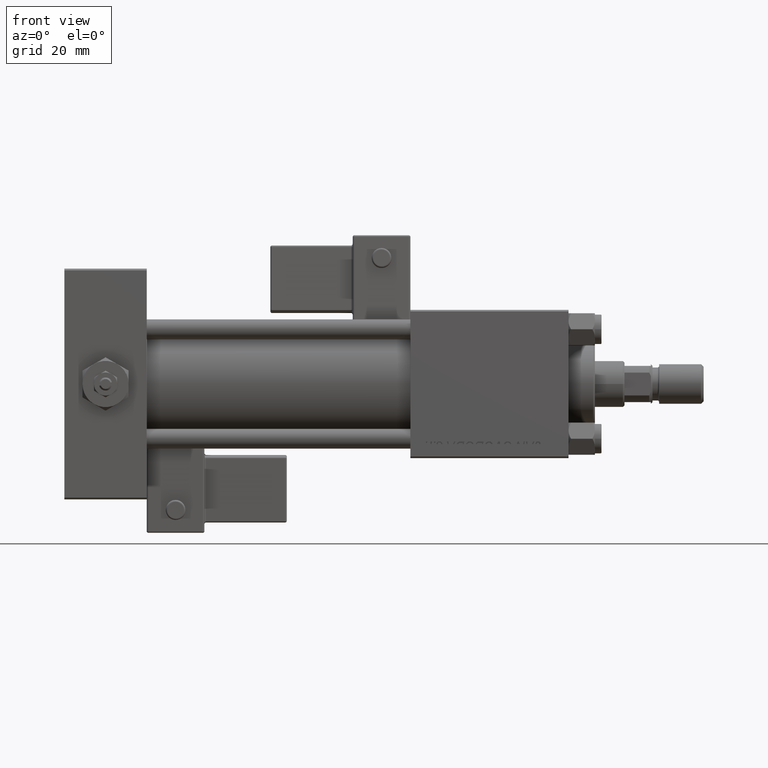
[diagram: clean part render]
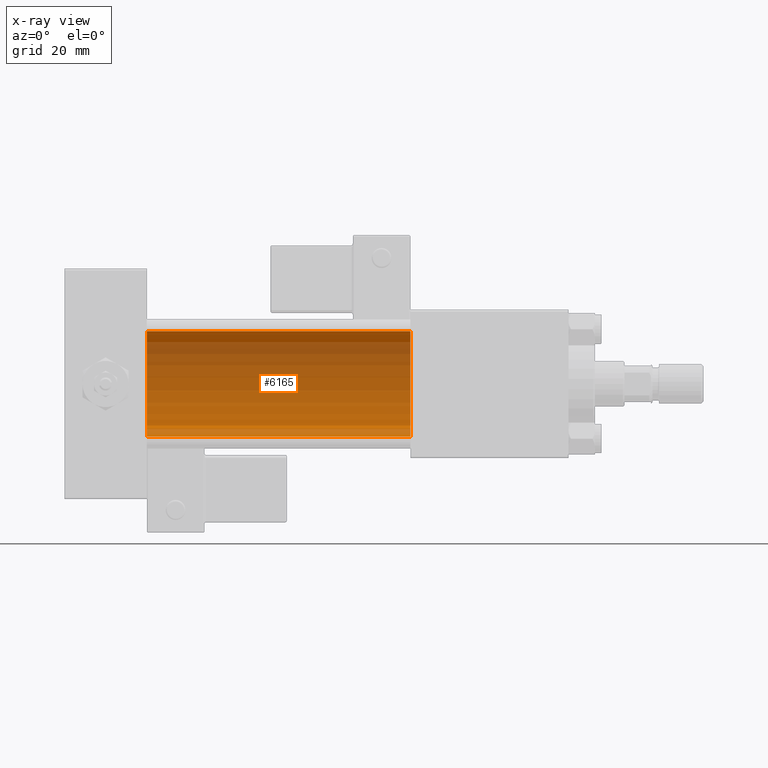
[diagram: x-ray — body ghosted, one internal face saturated and labeled with its STEP entity id]
A machine part, front view, then the same camera in x-ray: the body is ghosted and one INTERNAL B-rep face — a face not visible from any outside direction — is saturated and labeled: STEP entity #6165.
In plain terms, the highlighted cylindrical surface (partial cylindrical patch) has radius 16 mm, axis along (-1, -0, -0).
Its self-contained STEP definition (entity closure, byte-faithful):
#1531 = VECTOR ( 'NONE', #17171, 1000.000000000000000 ) ;
#1741 = ORIENTED_EDGE ( 'NONE', *, *, #6065, .F. ) ;
#2468 = ORIENTED_EDGE ( 'NONE', *, *, #6564, .T. ) ;
#3037 = DIRECTION ( 'NONE',  ( -1.000000000000000000, -0.000000000000000000, -0.000000000000000000 ) ) ;
#6065 = EDGE_CURVE ( 'NONE', #29525, #48812, #29095, .T. ) ;
#6165 = ADVANCED_FACE ( 'NONE', ( #17780 ), #17501, .F. ) ;
#6564 = EDGE_CURVE ( 'NONE', #30725, #13204, #50513, .T. ) ;
#6647 = DIRECTION ( 'NONE',  ( 1.000000000000000000, 0.000000000000000000, 0.000000000000000000 ) ) ;
#6698 = CIRCLE ( 'NONE', #19884, 16.00000000000000000 ) ;
#9532 = DIRECTION ( 'NONE',  ( 0.000000000000000000, 0.000000000000000000, 1.000000000000000000 ) ) ;
#11309 = DIRECTION ( 'NONE',  ( 0.000000000000000000, 0.000000000000000000, -1.000000000000000000 ) ) ;
#13204 = VERTEX_POINT ( 'NONE', #45427 ) ;
#14093 = DIRECTION ( 'NONE',  ( 0.000000000000000000, 0.000000000000000000, -1.000000000000000000 ) ) ;
#17171 = DIRECTION ( 'NONE',  ( -1.000000000000000000, -0.000000000000000000, -0.000000000000000000 ) ) ;
#17233 = CARTESIAN_POINT ( 'NONE',  ( 105.0000000000000142, -2.602085213965210642E-15, 0.000000000000000000 ) ) ;
#17501 = CYLINDRICAL_SURFACE ( 'NONE', #39330, 16.00000000000000000 ) ;
#17592 = CARTESIAN_POINT ( 'NONE',  ( 105.0000000000000142, -2.602085213965210642E-15, 16.00000000000000000 ) ) ;
#17780 = FACE_OUTER_BOUND ( 'NONE', #20015, .T. ) ;
#19884 = AXIS2_PLACEMENT_3D ( 'NONE', #32217, #6647, #11309 ) ;
#20015 = EDGE_LOOP ( 'NONE', ( #1741, #49256, #2468, #33591 ) ) ;
#25227 = CARTESIAN_POINT ( 'NONE',  ( 105.0000000000000142, -6.426503353294456087E-16, -16.00000000000000000 ) ) ;
#25987 = CARTESIAN_POINT ( 'NONE',  ( 105.0000000000000142, -2.602085213965210642E-15, 16.00000000000000000 ) ) ;
#26260 = CIRCLE ( 'NONE', #48249, 16.00000000000000000 ) ;
#29095 = LINE ( 'NONE', #25227, #36693 ) ;
#29525 = VERTEX_POINT ( 'NONE', #40222 ) ;
#29591 = EDGE_CURVE ( 'NONE', #48812, #13204, #6698, .T. ) ;
#30725 = VERTEX_POINT ( 'NONE', #17592 ) ;
#30878 = CARTESIAN_POINT ( 'NONE',  ( 105.0000000000000142, -2.602085213965210642E-15, 0.000000000000000000 ) ) ;
#32217 = CARTESIAN_POINT ( 'NONE',  ( 25.00000000000000000, -2.602085213965210642E-15, 0.000000000000000000 ) ) ;
#33591 = ORIENTED_EDGE ( 'NONE', *, *, #29591, .F. ) ;
#36693 = VECTOR ( 'NONE', #3037, 1000.000000000000000 ) ;
#36798 = CARTESIAN_POINT ( 'NONE',  ( 25.00000000000000000, -6.426503353294456087E-16, -16.00000000000000000 ) ) ;
#37361 = EDGE_CURVE ( 'NONE', #29525, #30725, #26260, .T. ) ;
#39330 = AXIS2_PLACEMENT_3D ( 'NONE', #17233, #51935, #9532 ) ;
#40222 = CARTESIAN_POINT ( 'NONE',  ( 105.0000000000000142, -6.426503353294456087E-16, -16.00000000000000000 ) ) ;
#40233 = DIRECTION ( 'NONE',  ( 1.000000000000000000, 0.000000000000000000, 0.000000000000000000 ) ) ;
#45427 = CARTESIAN_POINT ( 'NONE',  ( 25.00000000000000000, -2.602085213965210642E-15, 16.00000000000000000 ) ) ;
#48249 = AXIS2_PLACEMENT_3D ( 'NONE', #30878, #40233, #14093 ) ;
#48812 = VERTEX_POINT ( 'NONE', #36798 ) ;
#49256 = ORIENTED_EDGE ( 'NONE', *, *, #37361, .T. ) ;
#50513 = LINE ( 'NONE', #25987, #1531 ) ;
#51935 = DIRECTION ( 'NONE',  ( -1.000000000000000000, -0.000000000000000000, -0.000000000000000000 ) ) ;